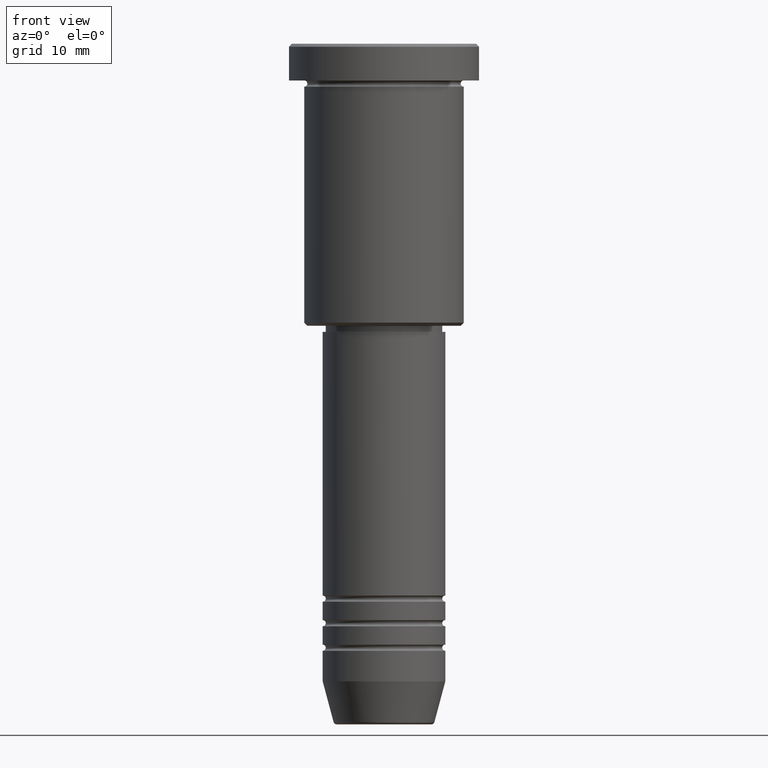
[diagram: clean part render]
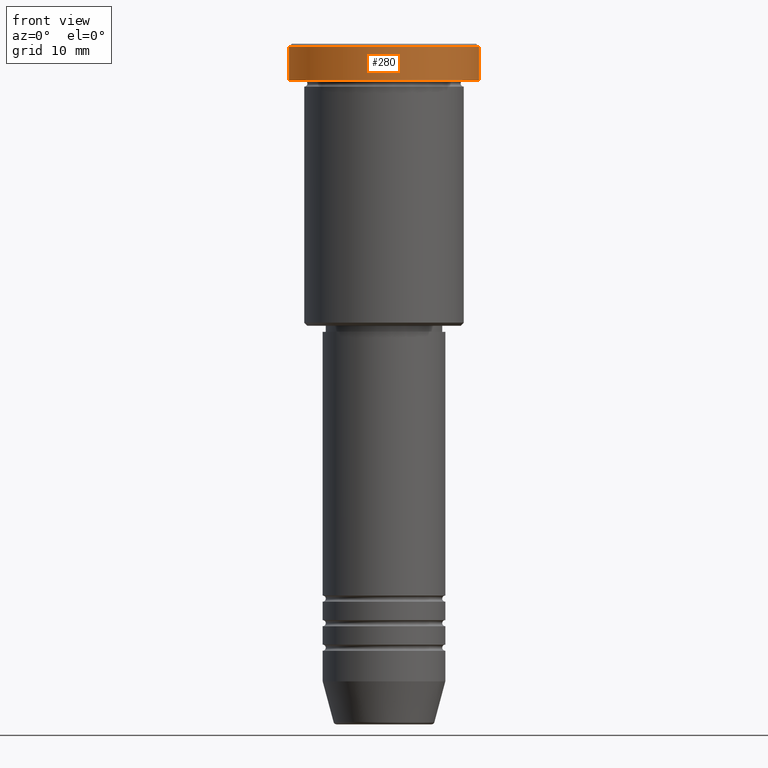
[diagram: same view with one face highlighted and labeled with its STEP entity id]
A machine part, front view. The second image highlights one B-rep face of the part: STEP entity #280.
In plain terms, the highlighted cylindrical surface (partial cylindrical patch) has radius 15.5 mm, axis along (-0, -0, 1).
Its self-contained STEP definition (entity closure, byte-faithful):
#26 = EDGE_CURVE ( 'NONE', #194, #174, #1082, .T. ) ;
#34 = VERTEX_POINT ( 'NONE', #883 ) ;
#49 = CYLINDRICAL_SURFACE ( 'NONE', #178, 15.50000000000000000 ) ;
#111 = ORIENTED_EDGE ( 'NONE', *, *, #1116, .T. ) ;
#155 = DIRECTION ( 'NONE',  ( -0.000000000000000000, -0.000000000000000000, 1.000000000000000000 ) ) ;
#174 = VERTEX_POINT ( 'NONE', #772 ) ;
#178 = AXIS2_PLACEMENT_3D ( 'NONE', #403, #756, #1124 ) ;
#192 = DIRECTION ( 'NONE',  ( 0.000000000000000000, 0.000000000000000000, -1.000000000000000000 ) ) ;
#194 = VERTEX_POINT ( 'NONE', #508 ) ;
#246 = CARTESIAN_POINT ( 'NONE',  ( 0.000000000000000000, 0.000000000000000000, -5.999999999999995559 ) ) ;
#248 = LINE ( 'NONE', #798, #513 ) ;
#280 = ADVANCED_FACE ( 'NONE', ( #484 ), #49, .T. ) ;
#283 = DIRECTION ( 'NONE',  ( 1.000000000000000000, 0.000000000000000000, 0.000000000000000000 ) ) ;
#297 = ORIENTED_EDGE ( 'NONE', *, *, #732, .T. ) ;
#317 = EDGE_LOOP ( 'NONE', ( #825, #868, #297, #111 ) ) ;
#388 = VECTOR ( 'NONE', #432, 1000.000000000000000 ) ;
#403 = CARTESIAN_POINT ( 'NONE',  ( 0.000000000000000000, 0.000000000000000000, 0.000000000000000000 ) ) ;
#432 = DIRECTION ( 'NONE',  ( -0.000000000000000000, -0.000000000000000000, 1.000000000000000000 ) ) ;
#484 = FACE_OUTER_BOUND ( 'NONE', #317, .T. ) ;
#494 = AXIS2_PLACEMENT_3D ( 'NONE', #1176, #192, #283 ) ;
#508 = CARTESIAN_POINT ( 'NONE',  ( -15.50000000000000000, 1.898202538678397557E-15, -5.999999999999995559 ) ) ;
#513 = VECTOR ( 'NONE', #770, 1000.000000000000000 ) ;
#543 = VERTEX_POINT ( 'NONE', #632 ) ;
#583 = CIRCLE ( 'NONE', #494, 15.50000000000000000 ) ;
#632 = CARTESIAN_POINT ( 'NONE',  ( 15.50000000000000000, 0.000000000000000000, -0.4999999999999848455 ) ) ;
#718 = CARTESIAN_POINT ( 'NONE',  ( -15.50000000000000000, 1.898202538678397557E-15, 0.000000000000000000 ) ) ;
#732 = EDGE_CURVE ( 'NONE', #34, #543, #248, .T. ) ;
#756 = DIRECTION ( 'NONE',  ( -0.000000000000000000, -0.000000000000000000, 1.000000000000000000 ) ) ;
#770 = DIRECTION ( 'NONE',  ( -0.000000000000000000, -0.000000000000000000, 1.000000000000000000 ) ) ;
#772 = CARTESIAN_POINT ( 'NONE',  ( -15.50000000000000000, 1.898202538678397557E-15, -0.4999999999999848455 ) ) ;
#781 = DIRECTION ( 'NONE',  ( 1.000000000000000000, 0.000000000000000000, 0.000000000000000000 ) ) ;
#798 = CARTESIAN_POINT ( 'NONE',  ( 15.50000000000000000, 0.000000000000000000, 0.000000000000000000 ) ) ;
#825 = ORIENTED_EDGE ( 'NONE', *, *, #26, .F. ) ;
#868 = ORIENTED_EDGE ( 'NONE', *, *, #913, .T. ) ;
#883 = CARTESIAN_POINT ( 'NONE',  ( 15.50000000000000000, 0.000000000000000000, -5.999999999999995559 ) ) ;
#913 = EDGE_CURVE ( 'NONE', #194, #34, #943, .T. ) ;
#943 = CIRCLE ( 'NONE', #1109, 15.50000000000000000 ) ;
#1082 = LINE ( 'NONE', #718, #388 ) ;
#1109 = AXIS2_PLACEMENT_3D ( 'NONE', #246, #155, #781 ) ;
#1116 = EDGE_CURVE ( 'NONE', #543, #174, #583, .T. ) ;
#1124 = DIRECTION ( 'NONE',  ( 1.000000000000000000, 0.000000000000000000, 0.000000000000000000 ) ) ;
#1176 = CARTESIAN_POINT ( 'NONE',  ( 0.000000000000000000, 0.000000000000000000, -0.4999999999999848455 ) ) ;